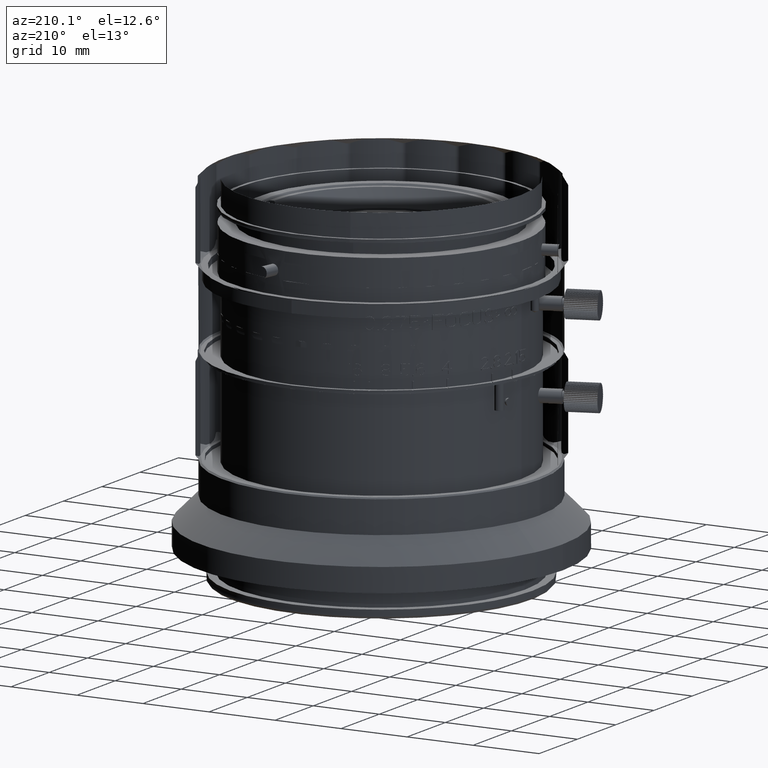
[diagram: clean part render]
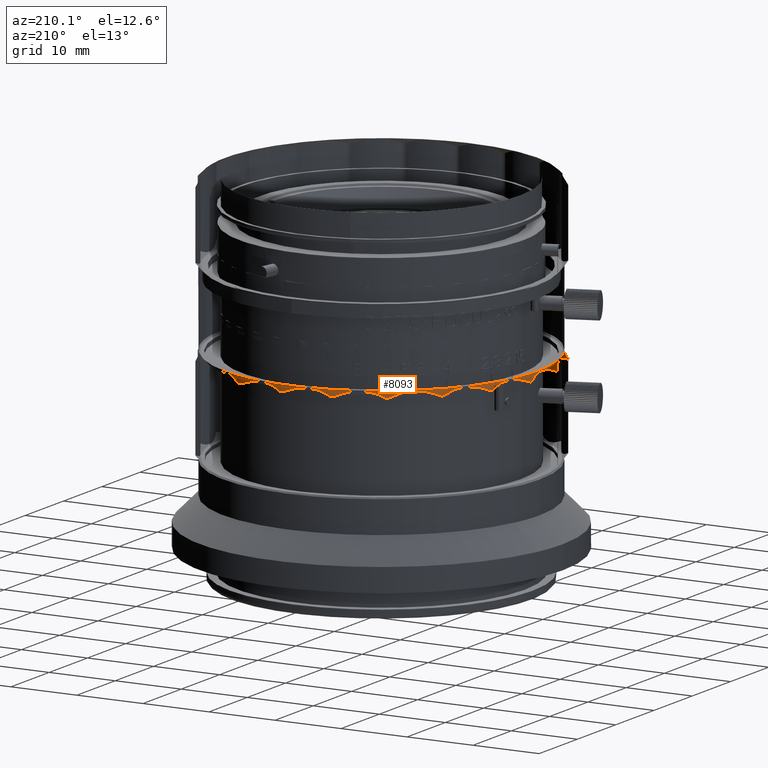
[diagram: same view with one face highlighted and labeled with its STEP entity id]
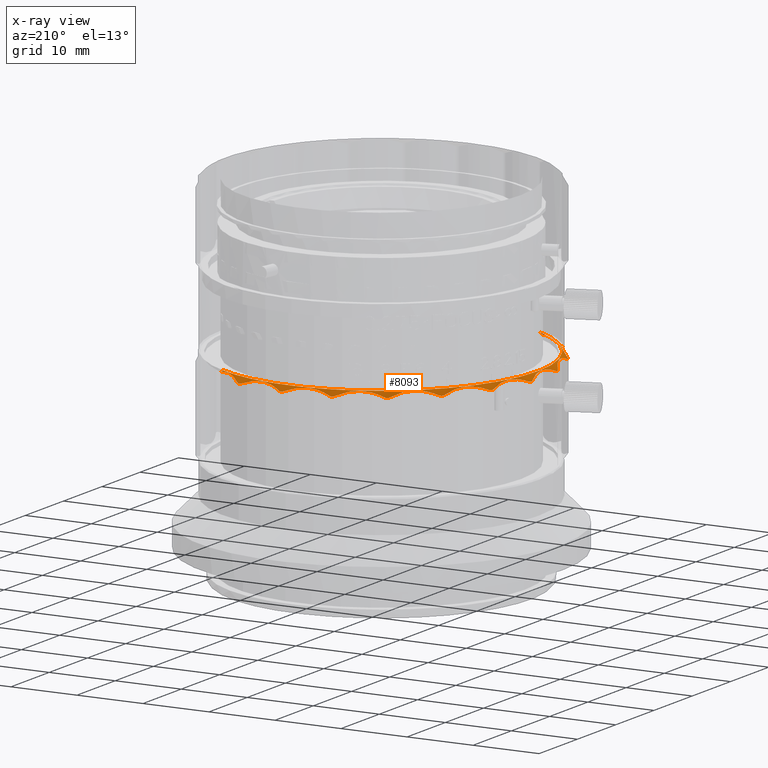
[diagram: x-ray of the same camera — body ghosted, the highlighted face saturated]
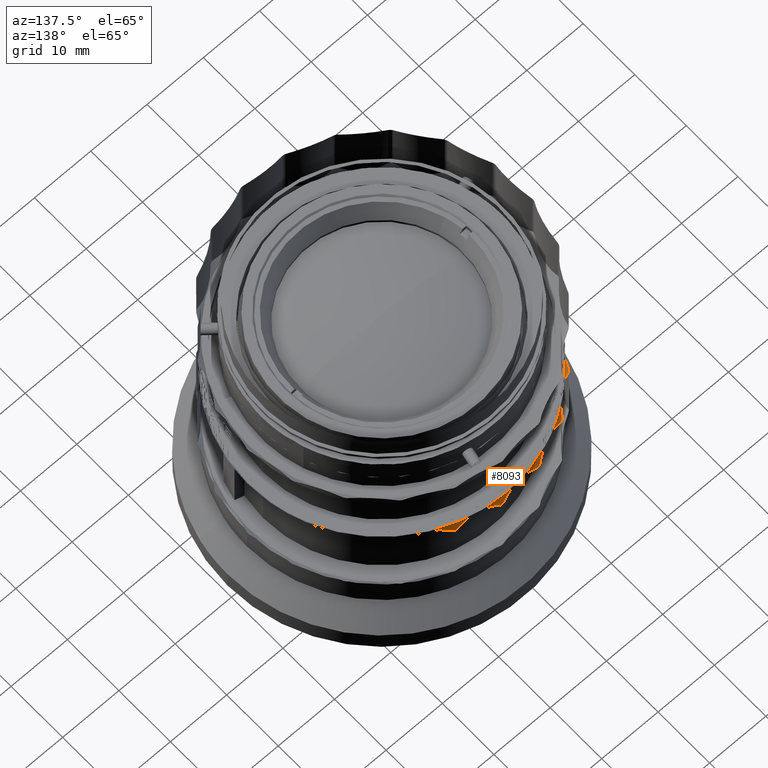
[diagram: same view with one face highlighted and labeled with its STEP entity id]
A machine part, auxiliary view. The second image highlights one B-rep face of the part: STEP entity #8093.
The next image is the same camera in x-ray: the body ghosted, the highlighted face saturated — about 0% of this face is hidden behind the body in this view.
A second angle (auxiliary view) of the same face is appended — the face is thin or edge-on in the first view.
In plain terms, the highlighted conical surface has half-angle 45 deg.
Its self-contained STEP definition (entity closure, byte-faithful):
#56 = VERTEX_POINT ( 'NONE', #35003 ) ;
#150 = CARTESIAN_POINT ( 'NONE',  ( 0.05523495357633539937, 145.9988448779056114, -12.17066261046372055 ) ) ;
#975 = CARTESIAN_POINT ( 'NONE',  ( 5.820467956382939789, 167.1020714403684906, -12.17066261044213960 ) ) ;
#1004 = CARTESIAN_POINT ( 'NONE',  ( 2.014542120062485786, 159.6808012670784365, -11.45000000000000284 ) ) ;
#1036 = CARTESIAN_POINT ( 'NONE',  ( 1.515671365438122642, 160.0478561604720653, -12.06194723655383427 ) ) ;
#1476 = CARTESIAN_POINT ( 'NONE',  ( 31.27181774919208479, 173.8957690886931857, -11.96625960131774846 ) ) ;
#1526 = CARTESIAN_POINT ( 'NONE',  ( 30.68543263345181771, 173.5472180522541237, -11.44999999999999929 ) ) ;
#1655 = CARTESIAN_POINT ( 'NONE',  ( 16.48953461024728284, 173.6261662968184964, -11.78516023574131921 ) ) ;
#2035 = CARTESIAN_POINT ( 'NONE',  ( 16.91966161226563159, 173.4274896159353148, -11.44999999999999751 ) ) ;
#2178 = CARTESIAN_POINT ( 'NONE',  ( 14.10627497498033733, 172.4044416433247591, -11.51455604289945533 ) ) ;
#2366 = EDGE_CURVE ( 'NONE', #102075, #89843, #44941, .T. ) ;
#2446 = CARTESIAN_POINT ( 'NONE',  ( 36.42611914639805093, 171.1715847938383206, -11.61672211485554129 ) ) ;
#2570 = CARTESIAN_POINT ( 'NONE',  ( 1.845852444697117400, 142.2352221968284596, -11.44999999999999929 ) ) ;
#2613 = CARTESIAN_POINT ( 'NONE',  ( -0.2059193869314470127, 154.0278911680069882, -12.17066261047779996 ) ) ;
#2621 = EDGE_CURVE ( 'NONE', #53290, #19732, #91943, .T. ) ;
#2826 = CARTESIAN_POINT ( 'NONE',  ( 1.368787669828744447, 143.5726970388393795, -11.50000341272482096 ) ) ;
#3087 = CARTESIAN_POINT ( 'NONE',  ( 0.4225750006443945161, 148.2666695606084772, -11.45000000000000107 ) ) ;
#3218 = CARTESIAN_POINT ( 'NONE',  ( 16.14317616820828505, 173.4066454737117340, -11.68926140626578025 ) ) ;
#3331 = CARTESIAN_POINT ( 'NONE',  ( 1.917783096941385379, 141.7370819602771519, -11.62101694375627581 ) ) ;
#3411 = CARTESIAN_POINT ( 'NONE',  ( 5.356542064977452000, 135.9917194483395804, -11.55823185052192947 ) ) ;
#4020 = CARTESIAN_POINT ( 'NONE',  ( 1.231931420796904764, 157.5765205868602550, -11.50000341270394522 ) ) ;
#4035 = CARTESIAN_POINT ( 'NONE',  ( -0.08300309333943690915, 146.7495071963300006, -12.17066261047172127 ) ) ;
#4454 = B_SPLINE_CURVE_WITH_KNOTS ( 'NONE', 3,
 ( #68891, #68364, #27910, #45456, #19412, #11418, #61949, #60898, #4985, #86488, #44928, #101908, #102434, #69412, #102967, #93928, #78471, #29470, #51856, #43881 ),
 .UNSPECIFIED., .F., .F.,
 ( 4, 2, 1, 2, 2, 2, 2, 1, 2, 2, 4 ),
 ( 0.000000000000000000, 0.1250000000000206224, 0.1875000000000252853, 0.2187500000000276168, 0.2500000000000299205, 0.5000000000000368594, 0.6250000000000403011, 0.6875000000000358602, 0.7187500000000335287, 0.7500000000000311973, 1.000000000000000000 ),
 .UNSPECIFIED. ) ;
#4539 = CARTESIAN_POINT ( 'NONE',  ( 34.69361542466490533, 172.0247776728971303, -11.51972311309514652 ) ) ;
#4737 = CARTESIAN_POINT ( 'NONE',  ( 10.83418750285228072, 130.9444947502132663, -11.55380875529474416 ) ) ;
#4985 = CARTESIAN_POINT ( 'NONE',  ( 0.1904923233697951024, 151.1159968602137269, -11.55823782324948645 ) ) ;
#5169 = VERTEX_POINT ( 'NONE', #14610 ) ;
#5218 = CARTESIAN_POINT ( 'NONE',  ( 10.47412724220630587, 170.8839749361410156, -11.96625960120896615 ) ) ;
#5745 = CARTESIAN_POINT ( 'NONE',  ( 9.404848646689135450, 169.6107058887124879, -11.55823782321896331 ) ) ;
#6285 = CARTESIAN_POINT ( 'NONE',  ( 7.382083843614262619, 167.9647699060679429, -11.64649513808308079 ) ) ;
#7655 = B_SPLINE_CURVE_WITH_KNOTS ( 'NONE', 3,
 ( #4035, #18984, #85525, #68994 ),
 .UNSPECIFIED., .F., .F.,
 ( 4, 4 ),
 ( 0.000000000000000000, 1.000000000000000000 ),
 .UNSPECIFIED. ) ;
#8093 = ADVANCED_FACE ( 'NONE', ( #74888 ), #9535, .F. ) ;
#8930 = CARTESIAN_POINT ( 'NONE',  ( 5.319766535621269554, 166.5259622830905073, -12.17066261045304110 ) ) ;
#8998 = CARTESIAN_POINT ( 'NONE',  ( 3.972304851396320835, 138.1005376967139284, -11.44999999999999751 ) ) ;
#9398 = VERTEX_POINT ( 'NONE', #52894 ) ;
#9454 = EDGE_CURVE ( 'NONE', #36668, #101654, #31612, .T. ) ;
#9463 = CARTESIAN_POINT ( 'NONE',  ( 31.81753690356394770, 173.9320233909979834, -12.17066261046968023 ) ) ;
#9511 = CARTESIAN_POINT ( 'NONE',  ( 0.3524419410755744719, 149.0403997970461205, -11.44999999999999751 ) ) ;
#9531 = EDGE_CURVE ( 'NONE', #98876, #9398, #9939, .T. ) ;
#9535 = CONICAL_SURFACE ( 'NONE', #55422, 23.78116167716100904, 0.7853981634209815654 ) ;
#9546 = CARTESIAN_POINT ( 'NONE',  ( 1.513320976231440129, 160.3210485964920053, -12.17066261045146014 ) ) ;
#9759 = VERTEX_POINT ( 'NONE', #56330 ) ;
#9772 = CARTESIAN_POINT ( 'NONE',  ( 1.154093071371566026, 144.0838245854619402, -11.55823782327688676 ) ) ;
#9939 = B_SPLINE_CURVE_WITH_KNOTS ( 'NONE', 3,
 ( #26086, #36132, #68618, #51061, #92628, #19672, #67584, #52109, #83580, #44130, #75582, #28161, #76101, #83068, #59070, #50552, #43104, #76617, #85153, #34055 ),
 .UNSPECIFIED., .F., .F.,
 ( 4, 2, 1, 2, 2, 2, 2, 1, 2, 2, 4 ),
 ( 0.000000000000000000, 0.1250000000000011935, 0.1875000000000016653, 0.2187500000000018319, 0.2500000000000019984, 0.4999999999999604205, 0.6249999999999398259, 0.6874999999999343858, 0.7187499999999363842, 0.7499999999999382716, 1.000000000000000000 ),
 .UNSPECIFIED. ) ;
#10031 = CARTESIAN_POINT ( 'NONE',  ( 11.28195633508895845, 170.8552027564210505, -11.45000000000000462 ) ) ;
#10059 = CARTESIAN_POINT ( 'NONE',  ( 0.07594739414487876317, 154.4960198922350116, -11.95321916968243769 ) ) ;
#10161 = CARTESIAN_POINT ( 'NONE',  ( 15.59887032920677186, 173.0768375518569542, -11.55823782322563531 ) ) ;
#10527 = CARTESIAN_POINT ( 'NONE',  ( 18.70339707721164402, 174.4183254963580509, -11.95321916983027144 ) ) ;
#10544 = ORIENTED_EDGE ( 'NONE', *, *, #32959, .F. ) ;
#10555 = CARTESIAN_POINT ( 'NONE',  ( 5.313922689910609343, 136.1976320556777296, -11.44999999999999929 ) ) ;
#11062 = CARTESIAN_POINT ( 'NONE',  ( 21.99328269533576119, 174.4676835913888340, -11.50000341277302951 ) ) ;
#11087 = CARTESIAN_POINT ( 'NONE',  ( 24.57095734110144747, 174.5022376881224204, -11.44999999999999751 ) ) ;
#11224 = CARTESIAN_POINT ( 'NONE',  ( 16.31618438036750263, 173.5149246607512907, -11.73537881816809936 ) ) ;
#11339 = CARTESIAN_POINT ( 'NONE',  ( 2.179793711221815311, 139.8307116164120032, -12.17066261046756104 ) ) ;
#11418 = CARTESIAN_POINT ( 'NONE',  ( 0.04475278430183939754, 151.9437768732472875, -11.73537881811946804 ) ) ;
#11578 = CARTESIAN_POINT ( 'NONE',  ( 20.29190351675618587, 174.3399708576934870, -11.58552955024748243 ) ) ;
#11922 = ORIENTED_EDGE ( 'NONE', *, *, #62823, .F. ) ;
#12008 = CARTESIAN_POINT ( 'NONE',  ( 34.36211131859376877, 172.2268127735440828, -11.55375141352260471 ) ) ;
#12857 = CARTESIAN_POINT ( 'NONE',  ( 32.53674856443394958, 173.6764098921910033, -12.17066261047866149 ) ) ;
#13376 = CARTESIAN_POINT ( 'NONE',  ( 32.34521384119740617, 173.8607914386637958, -12.27645659094122443 ) ) ;
#14025 = CARTESIAN_POINT ( 'NONE',  ( 24.89748289120853997, 175.3076693393665835, -12.27643499966235474 ) ) ;
#14039 = CARTESIAN_POINT ( 'NONE',  ( 17.42641806644600067, 174.3157326851309961, -12.17066261046770137 ) ) ;
#14610 = CARTESIAN_POINT ( 'NONE',  ( 6.381411600484351077, 133.8862697783031876, -12.17066261047872011 ) ) ;
#15209 = EDGE_CURVE ( 'NONE', #78135, #60173, #7655, .T. ) ;
#16236 = CARTESIAN_POINT ( 'NONE',  ( 1.513320976231440129, 160.3210485964920053, -12.17066261045146014 ) ) ;
#16418 = CARTESIAN_POINT ( 'NONE',  ( 6.191154889649058468, 134.3985155867308947, -11.95321916984500099 ) ) ;
#16765 = CARTESIAN_POINT ( 'NONE',  ( 1.623787096434633037, 160.8419268717966588, -12.27645659090997121 ) ) ;
#16910 = CARTESIAN_POINT ( 'NONE',  ( 23.99999999549019947, 150.7964473440000006, -11.53116167714950002 ) ) ;
#16996 = CARTESIAN_POINT ( 'NONE',  ( 28.42409028687581340, 174.0927611871420311, -11.44999999999999751 ) ) ;
#17342 = EDGE_CURVE ( 'NONE', #60173, #44070, #104937, .T. ) ;
#17459 = CARTESIAN_POINT ( 'NONE',  ( 6.473978268341298303, 133.6370439433044339, -12.27645659097442632 ) ) ;
#17519 = CARTESIAN_POINT ( 'NONE',  ( 0.2881321950986827640, 150.5910871490835348, -11.45000000000000284 ) ) ;
#17937 = CARTESIAN_POINT ( 'NONE',  ( 2.179793711221815311, 139.8307116164120032, -12.17066261046756104 ) ) ;
#17957 = EDGE_CURVE ( 'NONE', #55662, #34120, #48721, .T. ) ;
#17991 = CARTESIAN_POINT ( 'NONE',  ( 30.31183382042763341, 173.9007884924053542, -11.70381967382678745 ) ) ;
#18043 = CARTESIAN_POINT ( 'NONE',  ( 0.7034279329468369202, 155.2194569777746551, -11.45000000000000284 ) ) ;
#18072 = CARTESIAN_POINT ( 'NONE',  ( 1.018380592947007113, 156.7948329255677606, -11.49999829356522163 ) ) ;
#18428 = ORIENTED_EDGE ( 'NONE', *, *, #104443, .T. ) ;
#18588 = CARTESIAN_POINT ( 'NONE',  ( 0.3266788982418915022, 154.9849110836376838, -11.78789937633538720 ) ) ;
#18984 = CARTESIAN_POINT ( 'NONE',  ( -0.1469148350116495916, 146.4914424871465428, -12.27645659099393782 ) ) ;
#19071 = CARTESIAN_POINT ( 'NONE',  ( 5.800940582685202074, 135.5948237561893848, -11.45000000000000107 ) ) ;
#19411 = CARTESIAN_POINT ( 'NONE',  ( 2.748207723112142897, 138.9856504087460394, -12.06194723656305356 ) ) ;
#19412 = CARTESIAN_POINT ( 'NONE',  ( 0.004532816109117300540, 152.1457851847520431, -11.78516023565801696 ) ) ;
#19544 = CARTESIAN_POINT ( 'NONE',  ( 27.39621921852520714, 174.3869787904485804, -11.58552955027292164 ) ) ;
#19672 = CARTESIAN_POINT ( 'NONE',  ( 4.853559638344345117, 165.2388867379362409, -11.73537881811166983 ) ) ;
#19682 = CARTESIAN_POINT ( 'NONE',  ( 7.813303599467816163, 132.9603308848315066, -11.83759383855156599 ) ) ;
#19732 = VERTEX_POINT ( 'NONE', #34028 ) ;
#19906 = CARTESIAN_POINT ( 'NONE',  ( -0.08300309333943690915, 146.7495071963300006, -12.17066261047172127 ) ) ;
#19944 = CARTESIAN_POINT ( 'NONE',  ( 5.672672223080255094, 135.4443958138366497, -11.66055371214861580 ) ) ;
#20011 = CARTESIAN_POINT ( 'NONE',  ( 35.19368637062918737, 171.7414119143541029, -11.49759321883167651 ) ) ;
#20092 = VERTEX_POINT ( 'NONE', #45897 ) ;
#20173 = CARTESIAN_POINT ( 'NONE',  ( 6.317063520246932740, 167.3300763322634168, -11.95321916964102371 ) ) ;
#20538 = CARTESIAN_POINT ( 'NONE',  ( 35.70403487220817595, 171.4785185278604445, -11.51160174400533975 ) ) ;
#20606 = CARTESIAN_POINT ( 'NONE',  ( 26.99283500502572153, 174.5160461616201815, -11.66055371216874370 ) ) ;
#20633 = CARTESIAN_POINT ( 'NONE',  ( 23.55238130602948132, 174.8256544735846205, -11.78516023571459392 ) ) ;
#20892 = EDGE_CURVE ( 'NONE', #9398, #48472, #53077, .T. ) ;
#22085 = ORIENTED_EDGE ( 'NONE', *, *, #26220, .F. ) ;
#22255 = CARTESIAN_POINT ( 'NONE',  ( 7.673687873162997164, 168.1601742312855663, -11.58552955020554798 ) ) ;
#22370 = ORIENTED_EDGE ( 'NONE', *, *, #2621, .F. ) ;
#22623 = ORIENTED_EDGE ( 'NONE', *, *, #65674, .F. ) ;
#23476 = B_SPLINE_CURVE_WITH_KNOTS ( 'NONE', 3,
 ( #52262, #51211, #92252, #36293 ),
 .UNSPECIFIED., .F., .F.,
 ( 4, 4 ),
 ( 0.000000000000000000, 1.000000000000000000 ),
 .UNSPECIFIED. ) ;
#24225 = CARTESIAN_POINT ( 'NONE',  ( 11.61782910091797305, 130.4931103115592350, -11.53116167714946805 ) ) ;
#25014 = CARTESIAN_POINT ( 'NONE',  ( 0.5983728599346747057, 155.6203756431870602, -11.64649513810931936 ) ) ;
#25397 = CARTESIAN_POINT ( 'NONE',  ( 5.395926398607575614, 166.7806246720007550, -12.27643499961025064 ) ) ;
#25685 = ORIENTED_EDGE ( 'NONE', *, *, #9454, .F. ) ;
#26018 = CARTESIAN_POINT ( 'NONE',  ( 0.2940780198399000067, 151.3660265387116794, -11.45000000000000107 ) ) ;
#26045 = CARTESIAN_POINT ( 'NONE',  ( 1.447198520097909613, 158.9537373113212482, -11.73537881817107476 ) ) ;
#26086 = CARTESIAN_POINT ( 'NONE',  ( 5.319766535621269554, 166.5259622830905073, -12.17066261045304110 ) ) ;
#26220 = EDGE_CURVE ( 'NONE', #48472, #39348, #52497, .T. ) ;
#26532 = CARTESIAN_POINT ( 'NONE',  ( 29.18478563392842773, 173.9354365574431256, -11.44999999999999929 ) ) ;
#27001 = CARTESIAN_POINT ( 'NONE',  ( 29.60965162267363127, 173.9378944920935339, -11.55823782328442384 ) ) ;
#27025 = CARTESIAN_POINT ( 'NONE',  ( 19.86839725634444420, 174.3444045434940222, -11.66055371217461278 ) ) ;
#27049 = CARTESIAN_POINT ( 'NONE',  ( 21.47028015124304545, 174.3737932497581369, -11.44999999999999751 ) ) ;
#27182 = CARTESIAN_POINT ( 'NONE',  ( 17.42641806644600067, 174.3157326851309961, -12.17066261046770137 ) ) ;
#27297 = CARTESIAN_POINT ( 'NONE',  ( 2.148976674847459911, 140.3762789306152570, -11.95321916990989664 ) ) ;
#27563 = CARTESIAN_POINT ( 'NONE',  ( 1.480088166807117522, 158.2225872093474663, -11.45000000000000284 ) ) ;
#27821 = CARTESIAN_POINT ( 'NONE',  ( 0.8658833856054208855, 144.6512550118877698, -11.68926140627157828 ) ) ;
#27910 = CARTESIAN_POINT ( 'NONE',  ( -0.1383052038956494589, 152.7458627957846602, -11.96625960118884713 ) ) ;
#28021 = DIRECTION ( 'NONE',  ( 0.3681702821934589309, 0.6036974766661865610, -0.7071067811699078831 ) ) ;
#28039 = CARTESIAN_POINT ( 'NONE',  ( 27.59684942393494111, 174.3298526620223470, -11.55823185057065317 ) ) ;
#28062 = CARTESIAN_POINT ( 'NONE',  ( 23.74911912403018377, 174.8858829825016699, -11.84226975623463929 ) ) ;
#28161 = CARTESIAN_POINT ( 'NONE',  ( 3.653204157984951905, 163.0764763165507247, -11.51455604287960988 ) ) ;
#28502 = CARTESIAN_POINT ( 'NONE',  ( 33.10498005485797535, 173.1551402116965903, -11.89012107118579209 ) ) ;
#28657 = CARTESIAN_POINT ( 'NONE',  ( 9.827759913121376201, 170.0862983326811673, -11.68926140626040855 ) ) ;
#28802 = B_SPLINE_CURVE_WITH_KNOTS ( 'NONE', 3,
 ( #65847, #56279, #25397, #104757 ),
 .UNSPECIFIED., .F., .F.,
 ( 4, 4 ),
 ( 0.000000000000000000, 1.000000000000000000 ),
 .UNSPECIFIED. ) ;
#29052 = EDGE_CURVE ( 'NONE', #53048, #98876, #28802, .T. ) ;
#29261 = CARTESIAN_POINT ( 'NONE',  ( 13.51706845948732649, 172.2010175416321545, -11.58552955021349185 ) ) ;
#29339 = EDGE_LOOP ( 'NONE', ( #57049, #18428, #22370, #67085, #97752, #29741, #31857, #86265, #10544, #103886, #22085, #98361, #95581, #94143, #22623, #64130, #60146, #11922, #98611, #25685, #83156, #66466, #65539, #51015 ) ) ;
#29470 = CARTESIAN_POINT ( 'NONE',  ( 0.1438467721961395052, 147.8209955023766042, -11.78789937646227948 ) ) ;
#29741 = ORIENTED_EDGE ( 'NONE', *, *, #60612, .F. ) ;
#29805 = CARTESIAN_POINT ( 'NONE',  ( 13.11107054231070990, 172.0804235896182774, -11.66055371211131408 ) ) ;
#30221 = CARTESIAN_POINT ( 'NONE',  ( 10.63408001853216867, 171.1061933345544332, -12.06194723650425260 ) ) ;
#30362 = VERTEX_POINT ( 'NONE', #94763 ) ;
#31612 = B_SPLINE_CURVE_WITH_KNOTS ( 'NONE', 3,
 ( #41558, #87517, #14025, #98006 ),
 .UNSPECIFIED., .F., .F.,
 ( 4, 4 ),
 ( 0.000000000000000000, 1.000000000000000000 ),
 .UNSPECIFIED. ) ;
#31857 = ORIENTED_EDGE ( 'NONE', *, *, #17342, .F. ) ;
#32082 = EDGE_CURVE ( 'NONE', #20092, #102075, #95946, .T. ) ;
#32362 = CARTESIAN_POINT ( 'NONE',  ( 5.965252900561258897, 134.8993640423728948, -11.78789937649930408 ) ) ;
#32959 = EDGE_CURVE ( 'NONE', #9759, #78135, #4454, .T. ) ;
#33063 = CARTESIAN_POINT ( 'NONE',  ( 31.81753690356394770, 173.9320233909979834, -12.17066261046968023 ) ) ;
#33936 = CARTESIAN_POINT ( 'NONE',  ( 30.86075086050710681, 173.8896053819118777, -11.84226975630824974 ) ) ;
#33983 = CARTESIAN_POINT ( 'NONE',  ( 0.6382635072732665282, 146.7317252295859475, -11.44999999999999929 ) ) ;
#34028 = CARTESIAN_POINT ( 'NONE',  ( 11.47044361539500024, 130.2514388746276097, -11.81422980457429794 ) ) ;
#34055 = CARTESIAN_POINT ( 'NONE',  ( 1.821966482593015080, 161.0191471749330105, -12.17066261043533970 ) ) ;
#34120 = VERTEX_POINT ( 'NONE', #42230 ) ;
#34240 = CARTESIAN_POINT ( 'NONE',  ( 0.5703630486654472920, 145.1914528630557299, -11.84226975619929512 ) ) ;
#34516 = CARTESIAN_POINT ( 'NONE',  ( 19.17316659365031839, 174.0127297235870287, -11.45000000000000639 ) ) ;
#34800 = CARTESIAN_POINT ( 'NONE',  ( 11.43430063139224018, 171.7361694488059811, -12.17066261047154008 ) ) ;
#34888 = EDGE_CURVE ( 'NONE', #101654, #56, #86288, .T. ) ;
#34915 = CARTESIAN_POINT ( 'NONE',  ( 36.05829415337491639, 171.3166387083538496, -11.54984964627502819 ) ) ;
#35003 = CARTESIAN_POINT ( 'NONE',  ( 18.16465083855435125, 174.5096812557604835, -12.17066261049136067 ) ) ;
#35038 = CARTESIAN_POINT ( 'NONE',  ( 7.612487822168369611, 167.9877912708915346, -11.44999999999999751 ) ) ;
#35081 = CARTESIAN_POINT ( 'NONE',  ( -0.3756146710526306887, 153.5231466090601486, -12.27643499969857288 ) ) ;
#35289 = CARTESIAN_POINT ( 'NONE',  ( 1.947252704444561999, 141.5995579924303343, -11.64649513809442105 ) ) ;
#35539 = CARTESIAN_POINT ( 'NONE',  ( 22.24496286068952244, 174.4441374372275959, -11.44999999999999751 ) ) ;
#35614 = CARTESIAN_POINT ( 'NONE',  ( 7.343315597464660449, 133.1744039764656407, -11.99793554657757255 ) ) ;
#36038 = CARTESIAN_POINT ( 'NONE',  ( 23.22129264832924989, 174.7347731209271444, -11.70381967380230215 ) ) ;
#36132 = CARTESIAN_POINT ( 'NONE',  ( 5.241487619500457384, 166.2642142309978794, -12.06194723649099032 ) ) ;
#36293 = CARTESIAN_POINT ( 'NONE',  ( 10.78603281474441999, 171.3332395395140111, -12.17066261046986142 ) ) ;
#36503 = CARTESIAN_POINT ( 'NONE',  ( 0.9375531266735023239, 156.5335857286101202, -11.51455604291257373 ) ) ;
#36586 = CARTESIAN_POINT ( 'NONE',  ( 19.25009555778180115, 174.3635381298679476, -11.78789937648199704 ) ) ;
#36668 = VERTEX_POINT ( 'NONE', #54601 ) ;
#37362 = CARTESIAN_POINT ( 'NONE',  ( 1.513320976231440129, 160.3210485964920053, -12.17066261045146014 ) ) ;
#37777 = CARTESIAN_POINT ( 'NONE',  ( 11.97603946904960814, 171.8076706109662268, -11.95321916979086119 ) ) ;
#38031 = VERTEX_POINT ( 'NONE', #14039 ) ;
#38752 = CARTESIAN_POINT ( 'NONE',  ( 6.799629825187624377, 167.5927751055751855, -11.78789937629467310 ) ) ;
#39348 = VERTEX_POINT ( 'NONE', #58720 ) ;
#39915 = CARTESIAN_POINT ( 'NONE',  ( 11.66008766550752007, 130.5624026744789887, -11.44999999999235918 ) ) ;
#40215 = DIRECTION ( 'NONE',  ( -0.3681702821934700331, -0.6036974766661818981, -0.7071067811699061068 ) ) ;
#41329 = B_SPLINE_CURVE_WITH_KNOTS ( 'NONE', 3,
 ( #27182, #74592, #91143, #84171, #1655, #11224, #76165, #3218, #10161, #42640, #75116, #2178, #67131, #29261, #76691, #94790, #29805, #45257, #37777, #60167 ),
 .UNSPECIFIED., .F., .F.,
 ( 4, 2, 1, 2, 2, 2, 2, 1, 2, 2, 4 ),
 ( 0.000000000000000000, 0.1249999999999896749, 0.1874999999999846234, 0.2187499999999853451, 0.2499999999999860667, 0.4999999999999907851, 0.6249999999999905631, 0.6874999999999904521, 0.7187499999999922284, 0.7499999999999940048, 1.000000000000000000 ),
 .UNSPECIFIED. ) ;
#41488 = CARTESIAN_POINT ( 'NONE',  ( 5.511312506424668634, 165.7051995406762330, -11.45000000000000284 ) ) ;
#41518 = CARTESIAN_POINT ( 'NONE',  ( 0.5703808273121605543, 155.5534816192424898, -11.66055371214733327 ) ) ;
#41558 = CARTESIAN_POINT ( 'NONE',  ( 25.41349742638189824, 175.1761681658045120, -12.17066261048100095 ) ) ;
#41925 = EDGE_CURVE ( 'NONE', #89843, #36668, #70642, .T. ) ;
#41942 = CARTESIAN_POINT ( 'NONE',  ( 6.381411600484351077, 133.8862697783031876, -12.17066261047872011 ) ) ;
#41949 = CARTESIAN_POINT ( 'NONE',  ( 31.54528401382260938, 173.9092638776508579, -12.06194723659173285 ) ) ;
#41998 = CARTESIAN_POINT ( 'NONE',  ( 15.45603330415002397, 172.9164006054662366, -11.44999999999999929 ) ) ;
#42025 = CARTESIAN_POINT ( 'NONE',  ( 0.8011917462929663003, 156.1418928340044374, -11.55823185052399005 ) ) ;
#42041 = CARTESIAN_POINT ( 'NONE',  ( -0.2950844711669055043, 153.2698322905830253, -12.17066261047582110 ) ) ;
#42230 = CARTESIAN_POINT ( 'NONE',  ( 36.33992391361180552, 171.0305110097265811, -11.44999999999423501 ) ) ;
#42252 = CARTESIAN_POINT ( 'NONE',  ( 1.632684034512679627, 142.8065389183677780, -11.49999829354121061 ) ) ;
#42407 = CARTESIAN_POINT ( 'NONE',  ( 2.194787297298139261, 139.5652736815468131, -12.27645659096225828 ) ) ;
#42457 = CARTESIAN_POINT ( 'NONE',  ( 30.24516562969302313, 173.9037761883714097, -11.68926140632174615 ) ) ;
#42507 = CARTESIAN_POINT ( 'NONE',  ( 12.62520383881382990, 171.6462175788304876, -11.45000000000000284 ) ) ;
#42535 = CARTESIAN_POINT ( 'NONE',  ( -0.2059193869314470127, 154.0278911680069882, -12.17066261047779996 ) ) ;
#42640 = CARTESIAN_POINT ( 'NONE',  ( 15.10521614623418785, 172.8245466736046012, -11.50000341267332971 ) ) ;
#43004 = CARTESIAN_POINT ( 'NONE',  ( 23.15670569946274071, 174.7179772877711628, -11.68926140631398169 ) ) ;
#43033 = CARTESIAN_POINT ( 'NONE',  ( 6.834145418406228245, 134.4372314215073061, -11.45000000000000284 ) ) ;
#43104 = CARTESIAN_POINT ( 'NONE',  ( 3.013453535947868467, 162.2481414178936348, -11.66055371212448577 ) ) ;
#43556 = CARTESIAN_POINT ( 'NONE',  ( 1.331940909050507216, 143.7070321461169158, -11.44999999999999574 ) ) ;
#43630 = CARTESIAN_POINT ( 'NONE',  ( 8.120999101513413976, 132.8066326486987521, -11.74799801491150930 ) ) ;
#43718 = VECTOR ( 'NONE', #40215, 999.9999999999998863 ) ;
#43805 = CARTESIAN_POINT ( 'NONE',  ( 0.3594916776709617401, 145.5443653779269937, -11.96625960121085086 ) ) ;
#43880 = CARTESIAN_POINT ( 'NONE',  ( 5.135324158555368612, 136.3425475937618216, -11.51455604291089863 ) ) ;
#43881 = CARTESIAN_POINT ( 'NONE',  ( -0.08300309333943690915, 146.7495071963300006, -12.17066261047172127 ) ) ;
#43994 = LINE ( 'NONE', #68486, #104786 ) ;
#44009 = CARTESIAN_POINT ( 'NONE',  ( 29.05965488348743264, 174.0075272890854876, -11.50000341273338300 ) ) ;
#44070 = VERTEX_POINT ( 'NONE', #92148 ) ;
#44130 = CARTESIAN_POINT ( 'NONE',  ( 4.241914496454346484, 163.9863069797959270, -11.50000341268832571 ) ) ;
#44456 = CARTESIAN_POINT ( 'NONE',  ( 34.03562719059681285, 172.4483788951367558, -11.61669198820777993 ) ) ;
#44928 = CARTESIAN_POINT ( 'NONE',  ( 0.2713342732255639711, 149.7543902489739480, -11.49999829355852476 ) ) ;
#44941 = B_SPLINE_CURVE_WITH_KNOTS ( 'NONE', 3,
 ( #12857, #13376, #85816, #101248 ),
 .UNSPECIFIED., .F., .F.,
 ( 4, 4 ),
 ( 0.000000000000000000, 1.000000000000000000 ),
 .UNSPECIFIED. ) ;
#45095 = CARTESIAN_POINT ( 'NONE',  ( 22.53936925006770409, 174.5632587690018909, -11.55823782332329763 ) ) ;
#45162 = CARTESIAN_POINT ( 'NONE',  ( 9.961166005089799214, 170.2407620448965417, -11.73537881812129591 ) ) ;
#45257 = CARTESIAN_POINT ( 'NONE',  ( 12.51459852979077780, 171.9164594994313973, -11.78789937644330266 ) ) ;
#45456 = CARTESIAN_POINT ( 'NONE',  ( -0.04082504612907366520, 152.3464737660156914, -11.84226975617699118 ) ) ;
#45585 = CARTESIAN_POINT ( 'NONE',  ( 26.40764243963596414, 174.7165773214548494, -11.78789937651291453 ) ) ;
#45897 = CARTESIAN_POINT ( 'NONE',  ( 36.42611914639805093, 171.1715847938383206, -11.61672211485554129 ) ) ;
#46075 = EDGE_CURVE ( 'NONE', #30362, #5169, #54292, .T. ) ;
#46730 = CARTESIAN_POINT ( 'NONE',  ( 9.007490175694826462, 169.2241164614594027, -11.50000341266607862 ) ) ;
#48422 = CARTESIAN_POINT ( 'NONE',  ( 10.35582621982764451, 131.4023402740011477, -11.44999999999999751 ) ) ;
#48472 = VERTEX_POINT ( 'NONE', #37362 ) ;
#48721 = B_SPLINE_CURVE_WITH_KNOTS ( 'NONE', 3,
 ( #39915, #88911, #48422, #80920, #97412, #56918, #43033, #19071, #10555, #74970, #8998, #59000, #74459, #2570, #43556, #76034, #33983, #3087, #9511, #17519, #26018, #50479, #82484, #18043, #82999, #58471, #27563, #1004, #75513, #59504, #60033, #83507, #41488, #35038, #81958, #10031, #42507, #67513, #41998, #2035, #100019, #34516, #66990, #27049, #35539, #73933, #11087, #68017, #99506, #16996, #26532, #1526, #91001, #92030, #100526, #65961 ),
 .UNSPECIFIED., .F., .F.,
 ( 4, 2, 2, 2, 2, 2, 2, 2, 2, 2, 2, 2, 2, 2, 2, 2, 2, 2, 2, 2, 2, 2, 2, 2, 2, 2, 2, 4 ),
 ( 0.000000000000000000, 0.02215436063923836504, 0.04430872127847673009, 0.06646308191771510554, 0.08861744255695348793, 0.1107718031961918842, 0.1329261638354302388, 0.1772348851139070314, 0.1993892457531454276, 0.2215436063923837962, 0.2436979670316221647, 0.2658523276708604777, 0.2880066883100989017, 0.3101610489493372147, 0.3323154095885756387, 0.3544697702278139517, 0.3987784915062906888, 0.4430872127847674258, 0.4873959340632441628, 0.5095502947024826979, 0.5317046553417211774, 0.5538590159809597679, 0.5760133766201982475, 0.5981677372594367270, 0.6203220978986752066, 0.6424764585379137971, 0.6646308191771523877, 0.7089395404556296798 ),
 .UNSPECIFIED. ) ;
#48870 = CARTESIAN_POINT ( 'NONE',  ( 2.533151832143870408, 139.1541454982578045, -12.17066261046961984 ) ) ;
#49463 = CARTESIAN_POINT ( 'NONE',  ( 1.431947203401680024, 158.8172215776507983, -11.70381967378733101 ) ) ;
#50217 = CARTESIAN_POINT ( 'NONE',  ( 0.8351367108681855278, 144.7104852066234457, -11.70381967376111909 ) ) ;
#50479 = CARTESIAN_POINT ( 'NONE',  ( 0.3821710647816636830, 152.9150967451868723, -11.45000000000000107 ) ) ;
#50509 = CARTESIAN_POINT ( 'NONE',  ( 1.423985741507422187, 158.7509630755032504, -11.68926140628392751 ) ) ;
#50552 = CARTESIAN_POINT ( 'NONE',  ( 3.059919320808337950, 162.3038127316023065, -11.64649513808250525 ) ) ;
#51015 = ORIENTED_EDGE ( 'NONE', *, *, #96287, .F. ) ;
#51021 = CARTESIAN_POINT ( 'NONE',  ( 1.484119665424898482, 159.3637680194490827, -11.84226975626397582 ) ) ;
#51061 = CARTESIAN_POINT ( 'NONE',  ( 5.009699153643336622, 165.6198182334648266, -11.84226975617745126 ) ) ;
#51211 = CARTESIAN_POINT ( 'NONE',  ( 11.17072538687908789, 171.7013815861375861, -12.27645659100675779 ) ) ;
#51592 = CARTESIAN_POINT ( 'NONE',  ( 7.657198660210235097, 133.0332417209892526, -11.88877599197049229 ) ) ;
#51855 = CARTESIAN_POINT ( 'NONE',  ( 4.981467976179160040, 136.5686260146471511, -11.49999829357116177 ) ) ;
#51856 = CARTESIAN_POINT ( 'NONE',  ( 0.04835777366962391161, 147.2799199666683307, -11.95321916980789823 ) ) ;
#51994 = CARTESIAN_POINT ( 'NONE',  ( 25.41349742638189824, 175.1761681658045120, -12.17066261048100095 ) ) ;
#52109 = CARTESIAN_POINT ( 'NONE',  ( 4.771609383175813512, 165.0519632791772437, -11.68926140625905852 ) ) ;
#52262 = CARTESIAN_POINT ( 'NONE',  ( 11.43430063139224018, 171.7361694488059811, -12.17066261047154008 ) ) ;
#52497 = B_SPLINE_CURVE_WITH_KNOTS ( 'NONE', 3,
 ( #9546, #1036, #60979, #51021, #91551, #26045, #49463, #50509, #98487, #4020, #18072, #36503, #42025, #68981, #83026, #25014, #41518, #18588, #10059, #42535 ),
 .UNSPECIFIED., .F., .F.,
 ( 4, 2, 1, 2, 2, 2, 2, 1, 2, 2, 4 ),
 ( 0.000000000000000000, 0.1250000000000111300, 0.1875000000000108802, 0.2187500000000107969, 0.2500000000000106581, 0.4999999999999989453, 0.6249999999999992228, 0.6874999999999993339, 0.7187499999999937828, 0.7499999999999882316, 1.000000000000000000 ),
 .UNSPECIFIED. ) ;
#52607 = CARTESIAN_POINT ( 'NONE',  ( 10.78603281474441999, 171.3332395395140111, -12.17066261046986142 ) ) ;
#52894 = CARTESIAN_POINT ( 'NONE',  ( 1.821966482593015080, 161.0191471749330105, -12.17066261043533970 ) ) ;
#53039 = CARTESIAN_POINT ( 'NONE',  ( 27.99763736447759754, 174.2231438223790292, -11.51455604295939850 ) ) ;
#53048 = VERTEX_POINT ( 'NONE', #975 ) ;
#53065 = CARTESIAN_POINT ( 'NONE',  ( 23.35394349270751846, 174.7704508685523592, -11.73537881817043349 ) ) ;
#53077 = B_SPLINE_CURVE_WITH_KNOTS ( 'NONE', 3,
 ( #89734, #16765, #98228, #16236 ),
 .UNSPECIFIED., .F., .F.,
 ( 4, 4 ),
 ( 0.000000000000000000, 1.000000000000000000 ),
 .UNSPECIFIED. ) ;
#53170 = CARTESIAN_POINT ( 'NONE',  ( 7.968046618069381637, 132.8839480547393350, -11.79150812095958401 ) ) ;
#53290 = VERTEX_POINT ( 'NONE', #79697 ) ;
#53607 = CARTESIAN_POINT ( 'NONE',  ( 24.65089492021269990, 175.2084341155195091, -12.17066261047463982 ) ) ;
#53713 = CARTESIAN_POINT ( 'NONE',  ( 6.918492375714129672, 133.3439157290180219, -12.17066261048127984 ) ) ;
#54292 = B_SPLINE_CURVE_WITH_KNOTS ( 'NONE', 3,
 ( #48870, #19411, #92372, #97876, #57380, #73339, #56850, #59842, #72830, #64829, #51855, #43880, #3411, #60377, #89897, #92895, #19944, #32362, #16418, #59327 ),
 .UNSPECIFIED., .F., .F.,
 ( 4, 2, 1, 2, 2, 2, 2, 1, 2, 2, 4 ),
 ( 0.000000000000000000, 0.1250000000000092149, 0.1875000000000098255, 0.2187500000000102141, 0.2500000000000106026, 0.4999999999999965583, 0.6249999999999896749, 0.6874999999999915623, 0.7187499999999924505, 0.7499999999999933387, 1.000000000000000000 ),
 .UNSPECIFIED. ) ;
#54601 = CARTESIAN_POINT ( 'NONE',  ( 25.41349742638189824, 175.1761681658045120, -12.17066261048100095 ) ) ;
#55422 = AXIS2_PLACEMENT_3D ( 'NONE', #16910, #66912, #85397 ) ;
#55662 = VERTEX_POINT ( 'NONE', #66824 ) ;
#56279 = CARTESIAN_POINT ( 'NONE',  ( 5.578856522956812114, 166.9911389376298985, -12.27645659093282759 ) ) ;
#56330 = CARTESIAN_POINT ( 'NONE',  ( -0.2950844711669055043, 153.2698322905830253, -12.17066261047582110 ) ) ;
#56850 = CARTESIAN_POINT ( 'NONE',  ( 3.658155422164364179, 138.1529041108256592, -11.70381967380355626 ) ) ;
#56918 = CARTESIAN_POINT ( 'NONE',  ( 7.379479985496661065, 133.8833550593687960, -11.45000000000000107 ) ) ;
#57049 = ORIENTED_EDGE ( 'NONE', *, *, #17957, .F. ) ;
#57380 = CARTESIAN_POINT ( 'NONE',  ( 3.413905533124660607, 138.3941946230236226, -11.78516023574734461 ) ) ;
#58312 = VERTEX_POINT ( 'NONE', #81865 ) ;
#58371 = CARTESIAN_POINT ( 'NONE',  ( 2.323917621850200010, 139.3180793334758505, -12.27643499966101892 ) ) ;
#58423 = CARTESIAN_POINT ( 'NONE',  ( 30.44910756074798641, 173.8957816550366999, -11.73537881821254203 ) ) ;
#58471 = CARTESIAN_POINT ( 'NONE',  ( 1.249399316165933138, 157.4826731473909831, -11.45000000000000462 ) ) ;
#58720 = CARTESIAN_POINT ( 'NONE',  ( -0.2059193869314470127, 154.0278911680069882, -12.17066261047779996 ) ) ;
#59000 = CARTESIAN_POINT ( 'NONE',  ( 3.185686418705194090, 139.4361160598612628, -11.45000000000000284 ) ) ;
#59070 = CARTESIAN_POINT ( 'NONE',  ( 3.149065888774244648, 162.4125977900543774, -11.62101694374810634 ) ) ;
#59327 = CARTESIAN_POINT ( 'NONE',  ( 6.381411600484351077, 133.8862697783031876, -12.17066261047872011 ) ) ;
#59480 = CARTESIAN_POINT ( 'NONE',  ( 19.94089378499089094, 174.3427866263878911, -11.64649513814262249 ) ) ;
#59504 = CARTESIAN_POINT ( 'NONE',  ( 2.990522017918024744, 161.7916021696776170, -11.45000000000000462 ) ) ;
#59842 = CARTESIAN_POINT ( 'NONE',  ( 3.704994514833770847, 138.1053680888861095, -11.68926140629811172 ) ) ;
#60033 = CARTESIAN_POINT ( 'NONE',  ( 3.362595856030147878, 162.4750490444374975, -11.45000000000000107 ) ) ;
#60146 = ORIENTED_EDGE ( 'NONE', *, *, #102831, .F. ) ;
#60167 = CARTESIAN_POINT ( 'NONE',  ( 11.43430063139224018, 171.7361694488059811, -12.17066261047154008 ) ) ;
#60173 = VERTEX_POINT ( 'NONE', #150 ) ;
#60377 = CARTESIAN_POINT ( 'NONE',  ( 5.464758777442695781, 135.8133798368570240, -11.58552955022779329 ) ) ;
#60612 = EDGE_CURVE ( 'NONE', #44070, #30362, #66509, .T. ) ;
#60808 = CARTESIAN_POINT ( 'NONE',  ( 24.65089492021269990, 175.2084341155195091, -12.17066261047463982 ) ) ;
#60898 = CARTESIAN_POINT ( 'NONE',  ( 0.08234003955090914151, 151.7431692413295252, -11.68926140627826804 ) ) ;
#60979 = CARTESIAN_POINT ( 'NONE',  ( 1.508692260679732167, 159.7741460961292148, -11.96625960127521715 ) ) ;
#61651 = CARTESIAN_POINT ( 'NONE',  ( 7.321272995440436304, 167.9252679431593549, -11.66055371212012481 ) ) ;
#61949 = CARTESIAN_POINT ( 'NONE',  ( 0.07041775969179672745, 151.8088307461271711, -11.70381967375609022 ) ) ;
#62181 = CARTESIAN_POINT ( 'NONE',  ( 10.22265020923343570, 170.5587468928442547, -11.84226975619584188 ) ) ;
#62232 = CARTESIAN_POINT ( 'NONE',  ( 18.16465083855435125, 174.5096812557604835, -12.17066261049136067 ) ) ;
#62698 = CARTESIAN_POINT ( 'NONE',  ( 8.176757289803566309, 168.5282324401730136, -11.51455604289209056 ) ) ;
#62823 = EDGE_CURVE ( 'NONE', #56, #38031, #85081, .T. ) ;
#63291 = CARTESIAN_POINT ( 'NONE',  ( 32.53674856443394958, 173.6764098921910033, -12.17066261047866149 ) ) ;
#64130 = ORIENTED_EDGE ( 'NONE', *, *, #68830, .F. ) ;
#64829 = CARTESIAN_POINT ( 'NONE',  ( 4.503466716316616214, 137.2229610602287266, -11.50000341275477389 ) ) ;
#65539 = ORIENTED_EDGE ( 'NONE', *, *, #32082, .F. ) ;
#65674 = EDGE_CURVE ( 'NONE', #58312, #53048, #70090, .T. ) ;
#65693 = CARTESIAN_POINT ( 'NONE',  ( 0.05523495357633539937, 145.9988448779056114, -12.17066261046372055 ) ) ;
#65847 = CARTESIAN_POINT ( 'NONE',  ( 5.820467956382939789, 167.1020714403684906, -12.17066261044213960 ) ) ;
#65961 = CARTESIAN_POINT ( 'NONE',  ( 36.33992391361180552, 171.0305110097265811, -11.44999999999423501 ) ) ;
#66466 = ORIENTED_EDGE ( 'NONE', *, *, #2366, .F. ) ;
#66509 = B_SPLINE_CURVE_WITH_KNOTS ( 'NONE', 3,
 ( #17937, #42407, #58371, #83405 ),
 .UNSPECIFIED., .F., .F.,
 ( 4, 4 ),
 ( 0.000000000000000000, 1.000000000000000000 ),
 .UNSPECIFIED. ) ;
#66824 = CARTESIAN_POINT ( 'NONE',  ( 11.66008766550752007, 130.5624026744789887, -11.44999999999235918 ) ) ;
#66912 = DIRECTION ( 'NONE',  ( -7.903713790978679876E-15, 3.301698992321295170E-15, -1.000000000000000000 ) ) ;
#66990 = CARTESIAN_POINT ( 'NONE',  ( 19.93443938492706025, 174.1580965504923313, -11.44999999999999929 ) ) ;
#67085 = ORIENTED_EDGE ( 'NONE', *, *, #82440, .F. ) ;
#67131 = CARTESIAN_POINT ( 'NONE',  ( 13.71501720847975747, 172.2668367382613610, -11.55823185051102264 ) ) ;
#67252 = CARTESIAN_POINT ( 'NONE',  ( 0.2110717152723881329, 145.7744467157481267, -12.06194723650852829 ) ) ;
#67390 = CARTESIAN_POINT ( 'NONE',  ( 32.81412619480656190, 173.4093913820079251, -12.01745340057552625 ) ) ;
#67513 = CARTESIAN_POINT ( 'NONE',  ( 14.73482486789478685, 172.6241499648901936, -11.44999999999999929 ) ) ;
#67584 = CARTESIAN_POINT ( 'NONE',  ( 4.798747175984277469, 165.1129314198282430, -11.70381967374371968 ) ) ;
#67763 = CARTESIAN_POINT ( 'NONE',  ( 1.713067034026608981, 142.5451546214670486, -11.51455604288120149 ) ) ;
#68017 = CARTESIAN_POINT ( 'NONE',  ( 26.11993992411510135, 174.4142597697905614, -11.44999999999999751 ) ) ;
#68095 = CARTESIAN_POINT ( 'NONE',  ( 8.992148200722510865, 132.3214133820815732, -11.55032979535471682 ) ) ;
#68364 = CARTESIAN_POINT ( 'NONE',  ( -0.2123136189452486389, 153.0094698172497658, -12.06194723649529088 ) ) ;
#68486 = CARTESIAN_POINT ( 'NONE',  ( 36.38217089006242588, 171.0997843764407378, -11.53116167714953022 ) ) ;
#68525 = CARTESIAN_POINT ( 'NONE',  ( 20.91489354655210064, 174.3606857280858264, -11.51455604292939761 ) ) ;
#68618 = CARTESIAN_POINT ( 'NONE',  ( 5.154141119008435190, 166.0047214640312916, -11.96625960118994136 ) ) ;
#68830 = EDGE_CURVE ( 'NONE', #70693, #58312, #23476, .T. ) ;
#68891 = CARTESIAN_POINT ( 'NONE',  ( -0.2950844711669055043, 153.2698322905830253, -12.17066261047582110 ) ) ;
#68959 = CARTESIAN_POINT ( 'NONE',  ( 35.02699925396071734, 171.8323517777052416, -11.50015094979655039 ) ) ;
#68981 = CARTESIAN_POINT ( 'NONE',  ( 0.7292322400740236521, 155.9460926722260012, -11.58552955022729058 ) ) ;
#68994 = CARTESIAN_POINT ( 'NONE',  ( 0.05523495357633539937, 145.9988448779056114, -12.17066261046372055 ) ) ;
#69123 = CARTESIAN_POINT ( 'NONE',  ( 9.871662724875932327, 170.1365588250620249, -11.70381967374848742 ) ) ;
#69412 = CARTESIAN_POINT ( 'NONE',  ( 0.2452025517663992682, 148.8581291704753653, -11.58552955021976771 ) ) ;
#69578 = CARTESIAN_POINT ( 'NONE',  ( 21.18761129345597638, 174.3808898801105443, -11.49999829358941739 ) ) ;
#69644 = CARTESIAN_POINT ( 'NONE',  ( 7.499334838552624838, 168.0424455374005959, -11.62101694375274086 ) ) ;
#70073 = CARTESIAN_POINT ( 'NONE',  ( 28.26419430549996292, 174.1620653935398764, -11.49999829360960923 ) ) ;
#70090 = B_SPLINE_CURVE_WITH_KNOTS ( 'NONE', 3,
 ( #52607, #30221, #5218, #62181, #78704, #45162, #69123, #28657, #5745, #46730, #77661, #62698, #94700, #22255, #69644, #6285, #61651, #38752, #20173, #102665 ),
 .UNSPECIFIED., .F., .F.,
 ( 4, 2, 1, 2, 2, 2, 2, 1, 2, 2, 4 ),
 ( 0.000000000000000000, 0.1249999999999839018, 0.1874999999999759637, 0.2187499999999717726, 0.2499999999999675815, 0.4999999999999761302, 0.6249999999999803491, 0.6874999999999821254, 0.7187499999999865663, 0.7499999999999910072, 1.000000000000000000 ),
 .UNSPECIFIED. ) ;
#70642 = B_SPLINE_CURVE_WITH_KNOTS ( 'NONE', 3,
 ( #9463, #41949, #1476, #33936, #98922, #58423, #17991, #42457, #27001, #44009, #70073, #53039, #28039, #19544, #93029, #91983, #20606, #45585, #77567, #51994 ),
 .UNSPECIFIED., .F., .F.,
 ( 4, 2, 1, 2, 2, 2, 2, 1, 2, 2, 4 ),
 ( 0.000000000000000000, 0.1249999999999952538, 0.1874999999999942268, 0.2187499999999944766, 0.2499999999999947264, 0.4999999999999953371, 0.6249999999999968914, 0.6874999999999976685, 0.7187499999999980016, 0.7499999999999983347, 1.000000000000000000 ),
 .UNSPECIFIED. ) ;
#70693 = VERTEX_POINT ( 'NONE', #34800 ) ;
#72830 = CARTESIAN_POINT ( 'NONE',  ( 4.147652907088053453, 137.6480983005511121, -11.55823782330578453 ) ) ;
#73339 = CARTESIAN_POINT ( 'NONE',  ( 3.560932164156600965, 138.2499442381020458, -11.73537881818562845 ) ) ;
#73933 = CARTESIAN_POINT ( 'NONE',  ( 23.79356810605541384, 174.5082925274540173, -11.44999999999999751 ) ) ;
#74459 = CARTESIAN_POINT ( 'NONE',  ( 2.824212381499574320, 140.1251248767060247, -11.44999999999999751 ) ) ;
#74592 = CARTESIAN_POINT ( 'NONE',  ( 17.21429306297417483, 174.1435623790472960, -12.06194723655581669 ) ) ;
#74888 = FACE_OUTER_BOUND ( 'NONE', #29339, .T. ) ;
#74970 = CARTESIAN_POINT ( 'NONE',  ( 4.399055954533246826, 137.4512729189492575, -11.45000000000000284 ) ) ;
#75116 = CARTESIAN_POINT ( 'NONE',  ( 14.36092135929538927, 172.5041331486377203, -11.49999829354956304 ) ) ;
#75241 = CARTESIAN_POINT ( 'NONE',  ( 1.821048438359812005, 142.1447076636018494, -11.55823185049295532 ) ) ;
#75486 = CARTESIAN_POINT ( 'NONE',  ( 18.16465083855435125, 174.5096812557604835, -12.17066261049136067 ) ) ;
#75513 = CARTESIAN_POINT ( 'NONE',  ( 2.316872128174072731, 160.3952635671184908, -11.44999999999999929 ) ) ;
#75582 = CARTESIAN_POINT ( 'NONE',  ( 3.807444649811793091, 163.3022927196228693, -11.49999829353463809 ) ) ;
#75765 = CARTESIAN_POINT ( 'NONE',  ( 0.7708358890812183617, 144.8318711716623568, -11.73537881813082606 ) ) ;
#76034 = CARTESIAN_POINT ( 'NONE',  ( 0.7842300841902878350, 145.9674517964307086, -11.44999999999999929 ) ) ;
#76101 = CARTESIAN_POINT ( 'NONE',  ( 3.407447423668676034, 162.7423784607003654, -11.55823185049134771 ) ) ;
#76107 = CARTESIAN_POINT ( 'NONE',  ( 11.47044361539500024, 130.2514388746276097, -11.81422980457429794 ) ) ;
#76165 = CARTESIAN_POINT ( 'NONE',  ( 16.19994304149130571, 173.4417324525464892, -11.70381967377698551 ) ) ;
#76617 = CARTESIAN_POINT ( 'NONE',  ( 2.612989492458783758, 161.7766632805478650, -11.78789937629983875 ) ) ;
#76648 = CARTESIAN_POINT ( 'NONE',  ( 17.90253160003125288, 174.5541290873512992, -12.27645659099525766 ) ) ;
#76691 = CARTESIAN_POINT ( 'NONE',  ( 13.31576029938439021, 172.1399106624471074, -11.62101694376097960 ) ) ;
#76964 = CARTESIAN_POINT ( 'NONE',  ( 33.71231336300593995, 172.6798295183707808, -11.69408870002181189 ) ) ;
#77171 = CARTESIAN_POINT ( 'NONE',  ( 10.12568646450320564, 131.5520075817478585, -11.45528112156761402 ) ) ;
#77567 = CARTESIAN_POINT ( 'NONE',  ( 25.90138109842176917, 174.9300728449655651, -11.95321916985937527 ) ) ;
#77661 = CARTESIAN_POINT ( 'NONE',  ( 8.390705862637585000, 168.6985532709930737, -11.49999829354231551 ) ) ;
#78135 = VERTEX_POINT ( 'NONE', #19906 ) ;
#78221 = CARTESIAN_POINT ( 'NONE',  ( 17.42641806644600067, 174.3157326851309961, -12.17066261046770137 ) ) ;
#78471 = CARTESIAN_POINT ( 'NONE',  ( 0.2091326009876077474, 148.4361384493726064, -11.66055371212203440 ) ) ;
#78704 = CARTESIAN_POINT ( 'NONE',  ( 10.09402572276321308, 170.3981574043907017, -11.78516023567173576 ) ) ;
#78709 = EDGE_CURVE ( 'NONE', #39348, #9759, #89919, .T. ) ;
#79697 = CARTESIAN_POINT ( 'NONE',  ( 6.918492375714129672, 133.3439157290180219, -12.17066261048127984 ) ) ;
#80920 = CARTESIAN_POINT ( 'NONE',  ( 9.117453363245024534, 132.3356615571944133, -11.44999999999999751 ) ) ;
#81865 = CARTESIAN_POINT ( 'NONE',  ( 10.78603281474441999, 171.3332395395140111, -12.17066261046986142 ) ) ;
#81958 = CARTESIAN_POINT ( 'NONE',  ( 8.776133690580591562, 169.0262736697256685, -11.44999999999999929 ) ) ;
#82440 = EDGE_CURVE ( 'NONE', #5169, #53290, #83924, .T. ) ;
#82484 = CARTESIAN_POINT ( 'NONE',  ( 0.4642237463959866250, 153.6880822114467833, -11.45000000000000284 ) ) ;
#82740 = CARTESIAN_POINT ( 'NONE',  ( 1.871890862628506458, 141.9423937447352557, -11.58552955019928277 ) ) ;
#82999 = CARTESIAN_POINT ( 'NONE',  ( 0.8610978668565569816, 155.9812309572961340, -11.44999999999999929 ) ) ;
#83026 = CARTESIAN_POINT ( 'NONE',  ( 0.6514939371305680238, 155.7506040988983216, -11.62101694377698813 ) ) ;
#83068 = CARTESIAN_POINT ( 'NONE',  ( 3.280971765570112719, 162.5764875875370592, -11.58552955019579933 ) ) ;
#83156 = ORIENTED_EDGE ( 'NONE', *, *, #41925, .F. ) ;
#83405 = CARTESIAN_POINT ( 'NONE',  ( 2.533151832143870408, 139.1541454982578045, -12.17066261046961984 ) ) ;
#83507 = CARTESIAN_POINT ( 'NONE',  ( 4.573226738752703469, 164.4602372185456431, -11.45000000000000462 ) ) ;
#83580 = CARTESIAN_POINT ( 'NONE',  ( 4.507670211500195201, 164.4728447890246628, -11.55823782324085869 ) ) ;
#83924 = B_SPLINE_CURVE_WITH_KNOTS ( 'NONE', 3,
 ( #41942, #17459, #90941, #99955 ),
 .UNSPECIFIED., .F., .F.,
 ( 4, 4 ),
 ( 0.000000000000000000, 1.000000000000000000 ),
 .UNSPECIFIED. ) ;
#84007 = CARTESIAN_POINT ( 'NONE',  ( 20.08152734447876853, 174.3409154075372953, -11.62101694380447370 ) ) ;
#84171 = CARTESIAN_POINT ( 'NONE',  ( 16.65977925437084650, 173.7417085119521687, -11.84226975627419876 ) ) ;
#84295 = CARTESIAN_POINT ( 'NONE',  ( 1.961807347139334468, 141.5285190827999031, -11.66055371211043834 ) ) ;
#84819 = CARTESIAN_POINT ( 'NONE',  ( 0.6728597861264764557, 145.0130497769570184, -11.78516023567726201 ) ) ;
#85081 = B_SPLINE_CURVE_WITH_KNOTS ( 'NONE', 3,
 ( #62232, #76648, #102184, #78221 ),
 .UNSPECIFIED., .F., .F.,
 ( 4, 4 ),
 ( 0.000000000000000000, 1.000000000000000000 ),
 .UNSPECIFIED. ) ;
#85153 = CARTESIAN_POINT ( 'NONE',  ( 2.229294077209877933, 161.3833965612773795, -11.95321916964808118 ) ) ;
#85397 = DIRECTION ( 'NONE',  ( 0.5206714063284736405, 0.8537571590516412900, -1.313015023886342275E-15 ) ) ;
#85525 = CARTESIAN_POINT ( 'NONE',  ( -0.09638322166657509182, 146.2171684589484926, -12.27643499967533991 ) ) ;
#85816 = CARTESIAN_POINT ( 'NONE',  ( 32.08241975854765826, 173.9541667918491896, -12.27643499961357421 ) ) ;
#86220 = CARTESIAN_POINT ( 'NONE',  ( 8.070894089276539063, 132.8322574685403765, -11.76191685052646640 ) ) ;
#86265 = ORIENTED_EDGE ( 'NONE', *, *, #15209, .F. ) ;
#86288 = B_SPLINE_CURVE_WITH_KNOTS ( 'NONE', 3,
 ( #53607, #102067, #93576, #28062, #20633, #53065, #36038, #43004, #45095, #11062, #69578, #68525, #101026, #11578, #84007, #59480, #27025, #36586, #10527, #75486 ),
 .UNSPECIFIED., .F., .F.,
 ( 4, 2, 1, 2, 2, 2, 2, 1, 2, 2, 4 ),
 ( 0.000000000000000000, 0.1250000000000008604, 0.1874999999999995837, 0.2187499999999989730, 0.2499999999999983624, 0.4999999999999982792, 0.6249999999999981126, 0.6874999999999991118, 0.7187499999999988898, 0.7499999999999985567, 1.000000000000000000 ),
 .UNSPECIFIED. ) ;
#86488 = CARTESIAN_POINT ( 'NONE',  ( 0.2449911540173690117, 150.5642949327078099, -11.50000341269725013 ) ) ;
#87517 = CARTESIAN_POINT ( 'NONE',  ( 25.17612463851959959, 175.2959023068101772, -12.27645659097669295 ) ) ;
#88911 = CARTESIAN_POINT ( 'NONE',  ( 10.99697551115138516, 130.9668075269615315, -11.44999999999999929 ) ) ;
#89734 = CARTESIAN_POINT ( 'NONE',  ( 1.821966482593015080, 161.0191471749330105, -12.17066261043533970 ) ) ;
#89843 = VERTEX_POINT ( 'NONE', #33063 ) ;
#89897 = CARTESIAN_POINT ( 'NONE',  ( 5.569128859411954124, 135.6307164524079099, -11.62101694378419303 ) ) ;
#89919 = B_SPLINE_CURVE_WITH_KNOTS ( 'NONE', 3,
 ( #2613, #99021, #35081, #42041 ),
 .UNSPECIFIED., .F., .F.,
 ( 4, 4 ),
 ( 0.000000000000000000, 1.000000000000000000 ),
 .UNSPECIFIED. ) ;
#90941 = CARTESIAN_POINT ( 'NONE',  ( 6.670233508092855423, 133.4388935777678569, -12.27643499968347207 ) ) ;
#91001 = CARTESIAN_POINT ( 'NONE',  ( 31.42827272987418752, 173.3155952361034622, -11.44999999999999929 ) ) ;
#91143 = CARTESIAN_POINT ( 'NONE',  ( 16.99594651697992376, 173.9783634290951113, -11.96625960128619681 ) ) ;
#91551 = CARTESIAN_POINT ( 'NONE',  ( 1.468308407337669763, 159.1586260041412686, -11.78516023573502203 ) ) ;
#91943 = B_SPLINE_CURVE_WITH_KNOTS ( 'NONE', 3,
 ( #53713, #92106, #35614, #51592, #19682, #53170, #86220, #43630, #100608, #68095, #77171, #4737, #76107 ),
 .UNSPECIFIED., .F., .F.,
 ( 4, 2, 1, 2, 2, 2, 4 ),
 ( 0.000000000000000000, 0.1250000000000034139, 0.1875000000000021649, 0.2187500000000015543, 0.2500000000000009437, 0.5000000000000006661, 1.000000000000000000 ),
 .UNSPECIFIED. ) ;
#91983 = CARTESIAN_POINT ( 'NONE',  ( 27.06163382680071550, 174.4931313971111422, -11.64649513815051840 ) ) ;
#92030 = CARTESIAN_POINT ( 'NONE',  ( 33.61199909737720048, 172.5153325823263231, -11.45000000000000107 ) ) ;
#92106 = CARTESIAN_POINT ( 'NONE',  ( 7.131829395771830171, 133.2622981359928929, -12.07976891334129199 ) ) ;
#92148 = CARTESIAN_POINT ( 'NONE',  ( 2.179793711221815311, 139.8307116164120032, -12.17066261046756104 ) ) ;
#92252 = CARTESIAN_POINT ( 'NONE',  ( 10.93387216561965225, 171.5541394794829557, -12.27643499970425012 ) ) ;
#92372 = CARTESIAN_POINT ( 'NONE',  ( 2.957851467841416504, 138.8095384911406995, -11.96625960128425881 ) ) ;
#92628 = CARTESIAN_POINT ( 'NONE',  ( 4.934123674893098332, 165.4284505524667566, -11.78516023565597770 ) ) ;
#92895 = CARTESIAN_POINT ( 'NONE',  ( 5.637825116088001742, 135.5079886078544007, -11.64649513812191195 ) ) ;
#93029 = CARTESIAN_POINT ( 'NONE',  ( 27.19546788033471785, 174.4498908419256225, -11.62101694382015005 ) ) ;
#93477 = CARTESIAN_POINT ( 'NONE',  ( 32.53674856443394958, 173.6764098921910033, -12.17066261047866149 ) ) ;
#93576 = CARTESIAN_POINT ( 'NONE',  ( 24.14010667974910973, 175.0129369455468122, -11.96625960124258548 ) ) ;
#93928 = CARTESIAN_POINT ( 'NONE',  ( 0.2161636664336158142, 148.5083113558631851, -11.64649513810120496 ) ) ;
#94143 = ORIENTED_EDGE ( 'NONE', *, *, #29052, .F. ) ;
#94700 = CARTESIAN_POINT ( 'NONE',  ( 7.843441765880594829, 168.2814156837398230, -11.55823185050330437 ) ) ;
#94763 = CARTESIAN_POINT ( 'NONE',  ( 2.533151832143870408, 139.1541454982578045, -12.17066261046961984 ) ) ;
#94790 = CARTESIAN_POINT ( 'NONE',  ( 13.18082314297046231, 172.1002462789558649, -11.64649513809152914 ) ) ;
#95581 = ORIENTED_EDGE ( 'NONE', *, *, #9531, .F. ) ;
#95946 = B_SPLINE_CURVE_WITH_KNOTS ( 'NONE', 3,
 ( #2446, #34915, #20538, #20011, #68959, #4539, #12008, #44456, #76964, #101454, #28502, #67390, #93477 ),
 .UNSPECIFIED., .F., .F.,
 ( 4, 2, 2, 1, 2, 2, 4 ),
 ( 0.2954066148863287444, 0.4715549611647459893, 0.5596291343039545563, 0.6477033074431632897, 0.7357774805823718012, 0.8238516537215805347, 1.000000000000000000 ),
 .UNSPECIFIED. ) ;
#96287 = EDGE_CURVE ( 'NONE', #34120, #20092, #43994, .T. ) ;
#97177 = LINE ( 'NONE', #24225, #43718 ) ;
#97412 = CARTESIAN_POINT ( 'NONE',  ( 8.519911754244859026, 132.8337060160121439, -11.45000000000000284 ) ) ;
#97752 = ORIENTED_EDGE ( 'NONE', *, *, #46075, .F. ) ;
#97876 = CARTESIAN_POINT ( 'NONE',  ( 3.263377205354736521, 138.5344603168492199, -11.84226975627485245 ) ) ;
#98006 = CARTESIAN_POINT ( 'NONE',  ( 24.65089492021269990, 175.2084341155195091, -12.17066261047463982 ) ) ;
#98228 = CARTESIAN_POINT ( 'NONE',  ( 1.511034213370725743, 160.5868455635617238, -12.27643499955115836 ) ) ;
#98361 = ORIENTED_EDGE ( 'NONE', *, *, #20892, .F. ) ;
#98487 = CARTESIAN_POINT ( 'NONE',  ( 1.342470818265125487, 158.1197757585851491, -11.55823782325587601 ) ) ;
#98611 = ORIENTED_EDGE ( 'NONE', *, *, #34888, .F. ) ;
#98876 = VERTEX_POINT ( 'NONE', #8930 ) ;
#98922 = CARTESIAN_POINT ( 'NONE',  ( 30.65500088708279236, 173.8900421465121724, -11.78516023577887140 ) ) ;
#99021 = CARTESIAN_POINT ( 'NONE',  ( -0.3430576176955879020, 153.8001298661818339, -12.27645659100154418 ) ) ;
#99506 = CARTESIAN_POINT ( 'NONE',  ( 26.89056651326996672, 174.3323644695944381, -11.44999999999999751 ) ) ;
#99955 = CARTESIAN_POINT ( 'NONE',  ( 6.918492375714129672, 133.3439157290180219, -12.17066261048127984 ) ) ;
#100019 = CARTESIAN_POINT ( 'NONE',  ( 17.66391619485937881, 173.6469591152319367, -11.44999999999999929 ) ) ;
#100265 = CARTESIAN_POINT ( 'NONE',  ( 2.080738551227511390, 140.9214618748432599, -11.78789937656162401 ) ) ;
#100526 = CARTESIAN_POINT ( 'NONE',  ( 35.01610901727566727, 171.8379865547337033, -11.44999999999999929 ) ) ;
#100608 = CARTESIAN_POINT ( 'NONE',  ( 8.591381436014170703, 132.5616762539250431, -11.62223540902887287 ) ) ;
#101026 = CARTESIAN_POINT ( 'NONE',  ( 20.50045850704158568, 174.3445194740619684, -11.55823185054115854 ) ) ;
#101248 = CARTESIAN_POINT ( 'NONE',  ( 31.81753690356394770, 173.9320233909979834, -12.17066261046968023 ) ) ;
#101454 = CARTESIAN_POINT ( 'NONE',  ( 33.55969059436539936, 172.7949640919567003, -11.73793789788740938 ) ) ;
#101654 = VERTEX_POINT ( 'NONE', #60808 ) ;
#101908 = CARTESIAN_POINT ( 'NONE',  ( 0.2711017075894510686, 149.4809252179755106, -11.51455604290573653 ) ) ;
#102067 = CARTESIAN_POINT ( 'NONE',  ( 24.39744594671210365, 175.1064377954344025, -12.06194723653834266 ) ) ;
#102075 = VERTEX_POINT ( 'NONE', #63291 ) ;
#102184 = CARTESIAN_POINT ( 'NONE',  ( 17.63280073007214810, 174.4832422468775235, -12.27643499968218599 ) ) ;
#102434 = CARTESIAN_POINT ( 'NONE',  ( 0.2562519881953000400, 149.0664409172149760, -11.55823185051672652 ) ) ;
#102665 = CARTESIAN_POINT ( 'NONE',  ( 5.820467956382939789, 167.1020714403684906, -12.17066261044213960 ) ) ;
#102831 = EDGE_CURVE ( 'NONE', #38031, #70693, #41329, .T. ) ;
#102967 = CARTESIAN_POINT ( 'NONE',  ( 0.2285392120355132506, 148.6484118389942068, -11.62101694376912242 ) ) ;
#103886 = ORIENTED_EDGE ( 'NONE', *, *, #78709, .F. ) ;
#104443 = EDGE_CURVE ( 'NONE', #55662, #19732, #97177, .T. ) ;
#104757 = CARTESIAN_POINT ( 'NONE',  ( 5.319766535621269554, 166.5259622830905073, -12.17066261045304110 ) ) ;
#104786 = VECTOR ( 'NONE', #28021, 1000.000000000000114 ) ;
#104937 = B_SPLINE_CURVE_WITH_KNOTS ( 'NONE', 3,
 ( #65693, #67252, #43805, #34240, #84819, #75765, #50217, #27821, #9772, #2826, #42252, #67763, #75241, #82740, #3331, #35289, #84295, #100265, #27297, #11339 ),
 .UNSPECIFIED., .F., .F.,
 ( 4, 2, 1, 2, 2, 2, 2, 1, 2, 2, 4 ),
 ( 0.000000000000000000, 0.1250000000000238698, 0.1875000000000356937, 0.2187500000000364986, 0.2500000000000373035, 0.5000000000000325295, 0.6250000000000301981, 0.6875000000000289768, 0.7187500000000284217, 0.7500000000000278666, 1.000000000000000000 ),
 .UNSPECIFIED. ) ;